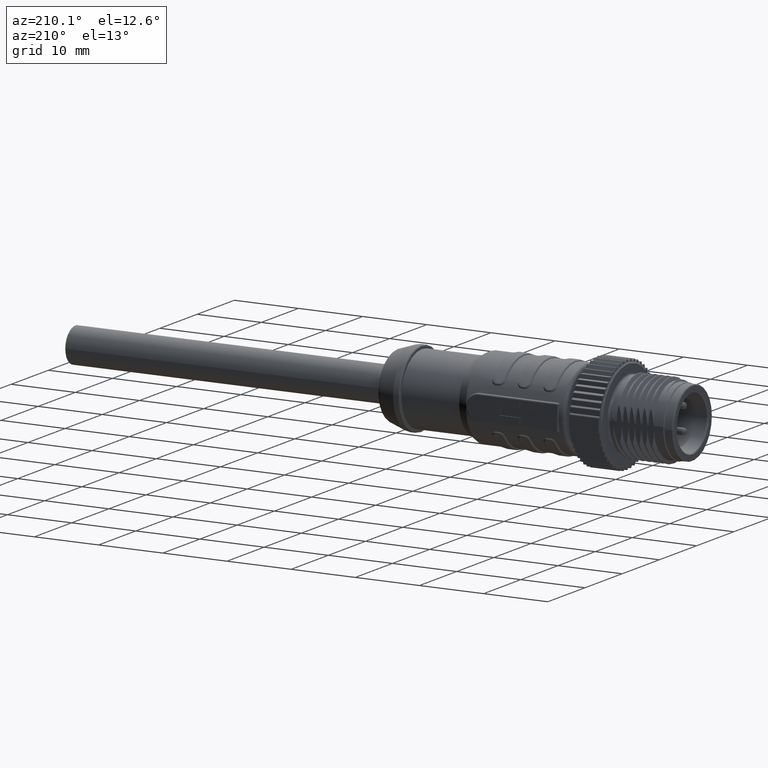
[diagram: clean part render]
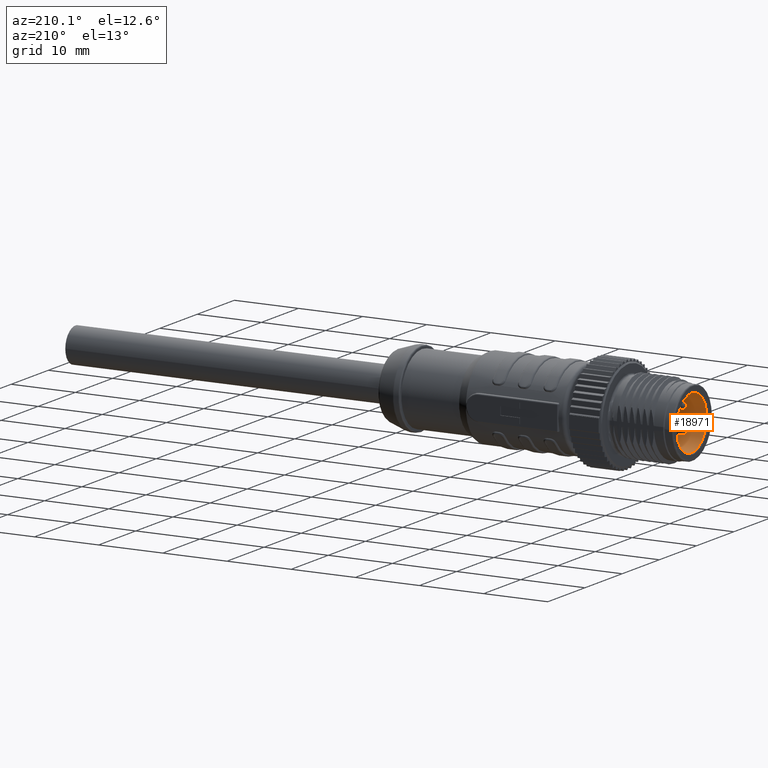
[diagram: same view with one face highlighted and labeled with its STEP entity id]
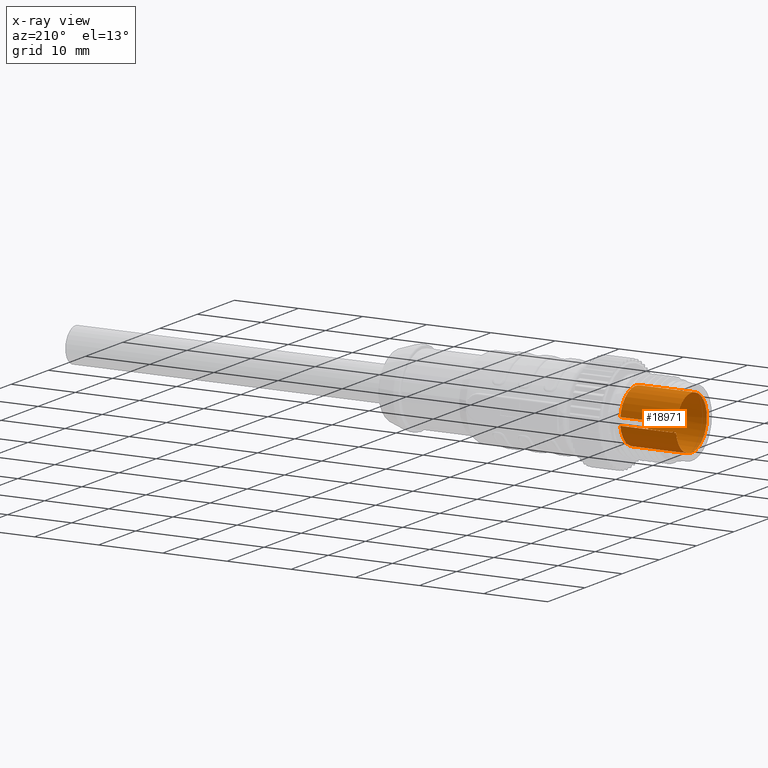
[diagram: x-ray of the same camera — body ghosted, the highlighted face saturated]
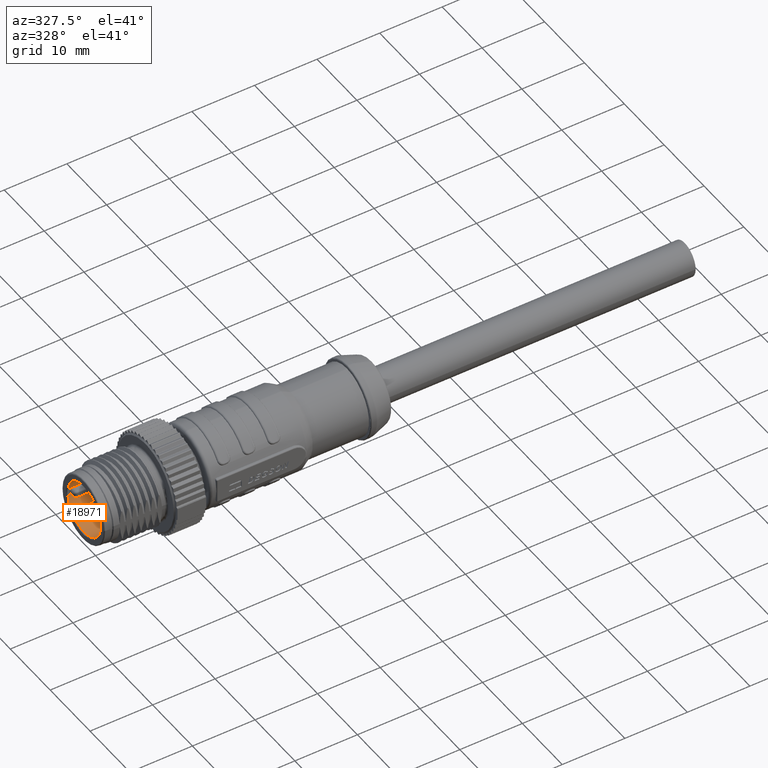
[diagram: same view with one face highlighted and labeled with its STEP entity id]
A machine part, auxiliary view. The second image highlights one B-rep face of the part: STEP entity #18971.
The next image is the same camera in x-ray: the body ghosted, the highlighted face saturated — about 0% of this face is hidden behind the body in this view.
A second angle (auxiliary view) of the same face is appended — the face is thin or edge-on in the first view.
In plain terms, the highlighted cylindrical surface (edge-blend (fillet) strip) has radius 4.15 mm, axis along (-1, 0, 0).
Its self-contained STEP definition (entity closure, byte-faithful):
#4056=CARTESIAN_POINT('',(-1.8E0,0.E0,0.E0));
#4057=DIRECTION('',(-1.E0,0.E0,0.E0));
#4058=DIRECTION('',(0.E0,9.894933609362E-1,-1.445783132530E-1));
#4059=AXIS2_PLACEMENT_3D('',#4056,#4057,#4058);
#4061=CARTESIAN_POINT('',(-1.8E0,0.E0,0.E0));
#4062=DIRECTION('',(-1.E0,0.E0,0.E0));
#4063=DIRECTION('',(0.E0,0.E0,-1.E0));
#4064=AXIS2_PLACEMENT_3D('',#4061,#4062,#4063);
#4066=CARTESIAN_POINT('',(-1.8E0,0.E0,0.E0));
#4067=DIRECTION('',(-1.E0,0.E0,0.E0));
#4068=DIRECTION('',(0.E0,-9.997600766899E-1,-2.190408767578E-2));
#4069=AXIS2_PLACEMENT_3D('',#4066,#4067,#4068);
#4071=CARTESIAN_POINT('',(-1.8E0,0.E0,0.E0));
#4072=DIRECTION('',(-1.E0,0.E0,0.E0));
#4073=DIRECTION('',(0.E0,0.E0,1.E0));
#4074=AXIS2_PLACEMENT_3D('',#4071,#4072,#4073);
#4081=DIRECTION('',(1.E0,-8.230453355888E-13,1.228646813919E-13));
#4082=VECTOR('',#4081,3.E-1);
#4083=CARTESIAN_POINT('',(-1.8E0,4.106397447886E0,-6.E-1));
#4084=LINE('',#4083,#4082);
#4085=CARTESIAN_POINT('',(-1.5E0,0.E0,0.E0));
#4086=DIRECTION('',(1.E0,0.E0,0.E0));
#4087=DIRECTION('',(0.E0,9.894933609362E-1,-1.445783132530E-1));
#4088=AXIS2_PLACEMENT_3D('',#4085,#4086,#4087);
#4090=DIRECTION('',(1.E0,3.414342854544E-9,-1.728510191772E-11));
#4091=VECTOR('',#4090,7.900001148561E0);
#4092=CARTESIAN_POINT('',(-1.000001148561E0,4.106397416889E0,
-6.000000009558E-1));
#4093=LINE('',#4092,#4091);
#4094=DIRECTION('',(-1.E0,-1.699327077386E-10,0.E0));
#4095=VECTOR('',#4094,7.899999809136E0);
#4096=CARTESIAN_POINT('',(6.9E0,4.106397447026E0,6.000000001434E-1));
#4097=LINE('',#4096,#4095);
#4098=CARTESIAN_POINT('',(-1.5E0,0.E0,0.E0));
#4099=DIRECTION('',(1.E0,0.E0,0.E0));
#4100=DIRECTION('',(0.E0,9.997096399474E-1,2.409638554217E-2));
#4101=AXIS2_PLACEMENT_3D('',#4098,#4099,#4100);
#4103=DIRECTION('',(-1.E0,8.289665250535E-13,8.733754460385E-14));
#4104=VECTOR('',#4103,3.E-1);
#4105=CARTESIAN_POINT('',(-1.5E0,4.106397447885E0,5.999999999999E-1));
#4106=LINE('',#4105,#4104);
#4120=CARTESIAN_POINT('',(-1.000001148561E0,4.106397416889E0,
-6.000000009558E-1));
#4121=CARTESIAN_POINT('',(-1.064980922020E0,4.106397416889E0,
-6.000000009558E-1));
#4122=CARTESIAN_POINT('',(-1.195247749921E0,4.110268558312E0,
-5.743549151907E-1));
#4123=CARTESIAN_POINT('',(-1.362159458251E0,4.124849861173E0,
-4.634837461208E-1));
#4124=CARTESIAN_POINT('',(-1.473974669576E0,4.140798574089E0,
-2.964849003623E-1));
#4125=CARTESIAN_POINT('',(-1.5E0,4.147216407302E0,-1.654928148785E-1));
#4126=CARTESIAN_POINT('',(-1.5E0,4.148795005782E0,-9.999999999998E-2));
#4202=CARTESIAN_POINT('',(-1.5E0,4.148795005782E0,1.E-1));
#4203=CARTESIAN_POINT('',(-1.5E0,4.147225583948E0,1.651120946730E-1));
#4204=CARTESIAN_POINT('',(-1.474285433136E0,4.140859537251E0,
2.955772788728E-1));
#4205=CARTESIAN_POINT('',(-1.362924264360E0,4.124937651802E0,
4.627552588891E-1));
#4206=CARTESIAN_POINT('',(-1.195901678276E0,4.110298849801E0,
5.741580539403E-1));
#4207=CARTESIAN_POINT('',(-1.065234440441E0,4.106397445684E0,
6.000000001434E-1));
#4208=CARTESIAN_POINT('',(-9.999998091355E-1,4.106397445684E0,
6.000000001434E-1));
#4214=CARTESIAN_POINT('',(6.9E0,0.E0,0.E0));
#4215=DIRECTION('',(1.E0,0.E0,0.E0));
#4216=DIRECTION('',(0.E0,9.894933609362E-1,1.445783132530E-1));
#4217=AXIS2_PLACEMENT_3D('',#4214,#4215,#4216);
#4219=CARTESIAN_POINT('',(6.9E0,0.E0,0.E0));
#4220=DIRECTION('',(1.E0,0.E0,0.E0));
#4221=DIRECTION('',(0.E0,0.E0,1.E0));
#4222=AXIS2_PLACEMENT_3D('',#4219,#4220,#4221);
#4224=CARTESIAN_POINT('',(6.9E0,0.E0,0.E0));
#4225=DIRECTION('',(1.E0,0.E0,0.E0));
#4226=DIRECTION('',(0.E0,-9.894933609362E-1,-1.445783132530E-1));
#4227=AXIS2_PLACEMENT_3D('',#4224,#4225,#4226);
#4229=CARTESIAN_POINT('',(6.9E0,0.E0,0.E0));
#4230=DIRECTION('',(1.E0,0.E0,0.E0));
#4231=DIRECTION('',(0.E0,0.E0,-1.E0));
#4232=AXIS2_PLACEMENT_3D('',#4229,#4230,#4231);
#11580=CARTESIAN_POINT('',(-1.8E0,4.106397447884E0,5.999999999997E-1));
#11581=VERTEX_POINT('',#11580);
#11582=CARTESIAN_POINT('',(-1.8E0,4.106397447887E0,-6.000000000003E-1));
#11583=VERTEX_POINT('',#11582);
#11584=CARTESIAN_POINT('',(-1.8E0,0.E0,-4.149999999999E0));
#11585=VERTEX_POINT('',#11584);
#11586=CARTESIAN_POINT('',(-1.8E0,-4.149004318262E0,-9.090196385447E-2));
#11587=VERTEX_POINT('',#11586);
#11588=CARTESIAN_POINT('',(-1.8E0,0.E0,4.149999999999E0));
#11589=VERTEX_POINT('',#11588);
#11590=CARTESIAN_POINT('',(-1.5E0,4.106397447885E0,-6.E-1));
#11591=VERTEX_POINT('',#11590);
#11592=CARTESIAN_POINT('',(-1.5E0,4.148795005782E0,-9.999999999998E-2));
#11593=VERTEX_POINT('',#11592);
#11594=VERTEX_POINT('',#4120);
#11595=CARTESIAN_POINT('',(6.9E0,4.106397443863E0,-6.000000010924E-1));
#11596=VERTEX_POINT('',#11595);
#11597=CARTESIAN_POINT('',(6.9E0,4.106397447885E0,6.000000000001E-1));
#11598=CARTESIAN_POINT('',(6.9E0,0.E0,4.15E0));
#11599=VERTEX_POINT('',#11597);
#11600=VERTEX_POINT('',#11598);
#11601=CARTESIAN_POINT('',(6.9E0,-4.106397447885E0,-6.E-1));
#11602=VERTEX_POINT('',#11601);
#11603=CARTESIAN_POINT('',(6.9E0,0.E0,-4.15E0));
#11604=VERTEX_POINT('',#11603);
#11605=CARTESIAN_POINT('',(-9.999998091355E-1,4.106397445684E0,
6.000000001434E-1));
#11606=VERTEX_POINT('',#11605);
#11607=VERTEX_POINT('',#4202);
#11608=CARTESIAN_POINT('',(-1.5E0,4.106397447885E0,5.999999999999E-1));
#11609=VERTEX_POINT('',#11608);
#18936=CARTESIAN_POINT('',(7.074E0,0.E0,0.E0));
#18937=DIRECTION('',(-1.E0,0.E0,0.E0));
#18938=DIRECTION('',(0.E0,0.E0,1.E0));
#18939=AXIS2_PLACEMENT_3D('',#18936,#18937,#18938);
#18940=CYLINDRICAL_SURFACE('',#18939,4.15E0);
#18941=ORIENTED_EDGE('',*,*,#18930,.F.);
#18942=ORIENTED_EDGE('',*,*,#18928,.F.);
#18943=ORIENTED_EDGE('',*,*,#18926,.F.);
#18944=ORIENTED_EDGE('',*,*,#18924,.F.);
#18946=ORIENTED_EDGE('',*,*,#18945,.T.);
#18948=ORIENTED_EDGE('',*,*,#18947,.T.);
#18950=ORIENTED_EDGE('',*,*,#18949,.F.);
#18952=ORIENTED_EDGE('',*,*,#18951,.T.);
#18954=ORIENTED_EDGE('',*,*,#18953,.F.);
#18956=ORIENTED_EDGE('',*,*,#18955,.F.);
#18958=ORIENTED_EDGE('',*,*,#18957,.F.);
#18960=ORIENTED_EDGE('',*,*,#18959,.F.);
#18962=ORIENTED_EDGE('',*,*,#18961,.T.);
#18964=ORIENTED_EDGE('',*,*,#18963,.F.);
#18966=ORIENTED_EDGE('',*,*,#18965,.T.);
#18968=ORIENTED_EDGE('',*,*,#18967,.T.);
#18969=EDGE_LOOP('',(#18941,#18942,#18943,#18944,#18946,#18948,#18950,#18952,
#18954,#18956,#18958,#18960,#18962,#18964,#18966,#18968));
#18970=FACE_OUTER_BOUND('',#18969,.F.);
#18971=ADVANCED_FACE('',(#18970),#18940,.F.);
#4060=CIRCLE('',#4059,4.149999999999E0);
#4065=CIRCLE('',#4064,4.149999999999E0);
#4070=CIRCLE('',#4069,4.149999999999E0);
#4075=CIRCLE('',#4074,4.149999999999E0);
#4089=CIRCLE('',#4088,4.15E0);
#4102=CIRCLE('',#4101,4.15E0);
#4127=B_SPLINE_CURVE_WITH_KNOTS('',3,(#4120,#4121,#4122,#4123,#4124,#4125,
#4126),.UNSPECIFIED.,.F.,.F.,(4,1,1,1,4),(0.E0,2.5E-1,5.E-1,7.5E-1,1.E0),
.UNSPECIFIED.);
#4209=B_SPLINE_CURVE_WITH_KNOTS('',3,(#4202,#4203,#4204,#4205,#4206,#4207,
#4208),.UNSPECIFIED.,.F.,.F.,(4,1,1,1,4),(0.E0,2.5E-1,5.E-1,7.5E-1,1.E0),
.UNSPECIFIED.);
#4218=CIRCLE('',#4217,4.15E0);
#4223=CIRCLE('',#4222,4.15E0);
#4228=CIRCLE('',#4227,4.15E0);
#4233=CIRCLE('',#4232,4.15E0);
#18924=EDGE_CURVE('',#11583,#11585,#4060,.T.);
#18926=EDGE_CURVE('',#11585,#11587,#4065,.T.);
#18928=EDGE_CURVE('',#11587,#11589,#4070,.T.);
#18930=EDGE_CURVE('',#11589,#11581,#4075,.T.);
#18945=EDGE_CURVE('',#11583,#11591,#4084,.T.);
#18947=EDGE_CURVE('',#11591,#11593,#4089,.T.);
#18949=EDGE_CURVE('',#11594,#11593,#4127,.T.);
#18951=EDGE_CURVE('',#11594,#11596,#4093,.T.);
#18953=EDGE_CURVE('',#11604,#11596,#4233,.T.);
#18955=EDGE_CURVE('',#11602,#11604,#4228,.T.);
#18957=EDGE_CURVE('',#11600,#11602,#4223,.T.);
#18959=EDGE_CURVE('',#11599,#11600,#4218,.T.);
#18961=EDGE_CURVE('',#11599,#11606,#4097,.T.);
#18963=EDGE_CURVE('',#11607,#11606,#4209,.T.);
#18965=EDGE_CURVE('',#11607,#11609,#4102,.T.);
#18967=EDGE_CURVE('',#11609,#11581,#4106,.T.);